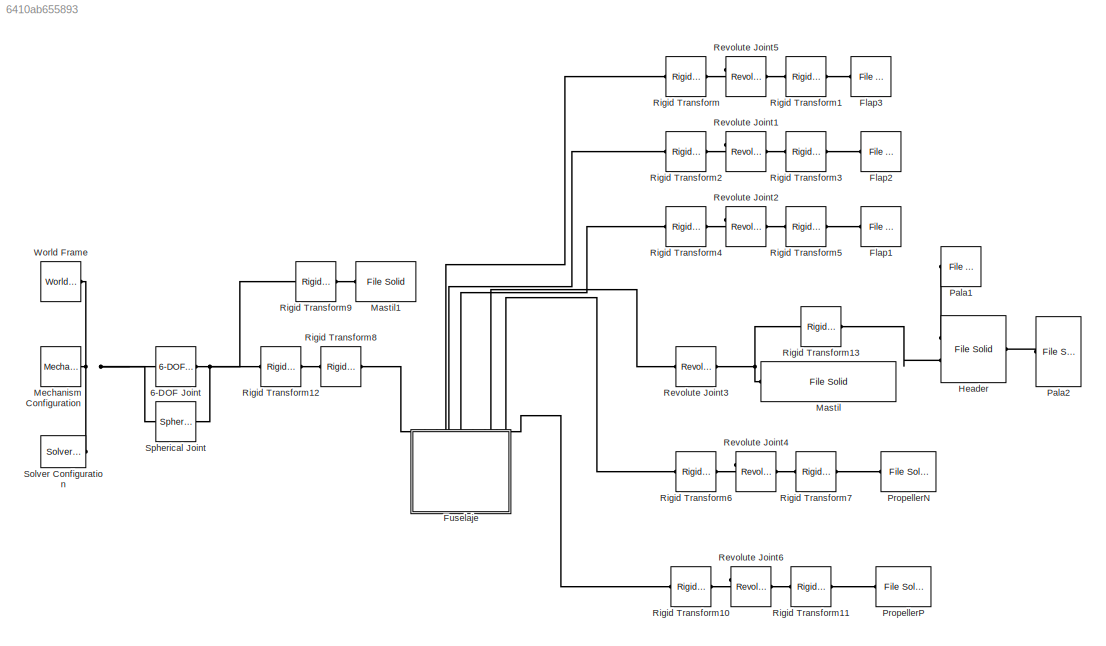
MODEL slx_6410ab655893
KIND model
CONFIG AbsTol = auto
CONFIG EnableMultiTasking = off
CONFIG FixedStep = auto
CONFIG MaxStep = auto
CONFIG MinStep = auto
CONFIG RelTol = 1e-3
CONFIG SampleTimeConstraint = Unconstrained
CONFIG SolverName = VariableStepAuto
CONFIG StartTime = 0.0
CONFIG StopTime = 10.0
BLOCK [Reference] 6-DOF Joint  REF=sm_lib/Joints/6-DOF Joint
  Commented = on
  Ports = [0, 0, 0, 0, 0, 1, 1]
  SourceBlock = sm_lib/Joints/6-DOF Joint
  SourceProductBaseCode = MS
  SourceType = 6-DOF Joint
BLOCK [Reference] Flap1  REF=sm_lib/Body Elements/File Solid
  Ports = [0, 0, 0, 0, 0, 1]
  SourceBlock = sm_lib/Body Elements/File Solid
  SourceProductBaseCode = MS
  SourceType = File Solid
BLOCK [Reference] Flap2  REF=sm_lib/Body Elements/File Solid
  Ports = [0, 0, 0, 0, 0, 1]
  SourceBlock = sm_lib/Body Elements/File Solid
  SourceProductBaseCode = MS
  SourceType = File Solid
BLOCK [Reference] Flap3  REF=sm_lib/Body Elements/File Solid
  Ports = [0, 0, 0, 0, 0, 1]
  SourceBlock = sm_lib/Body Elements/File Solid
  SourceProductBaseCode = MS
  SourceType = File Solid
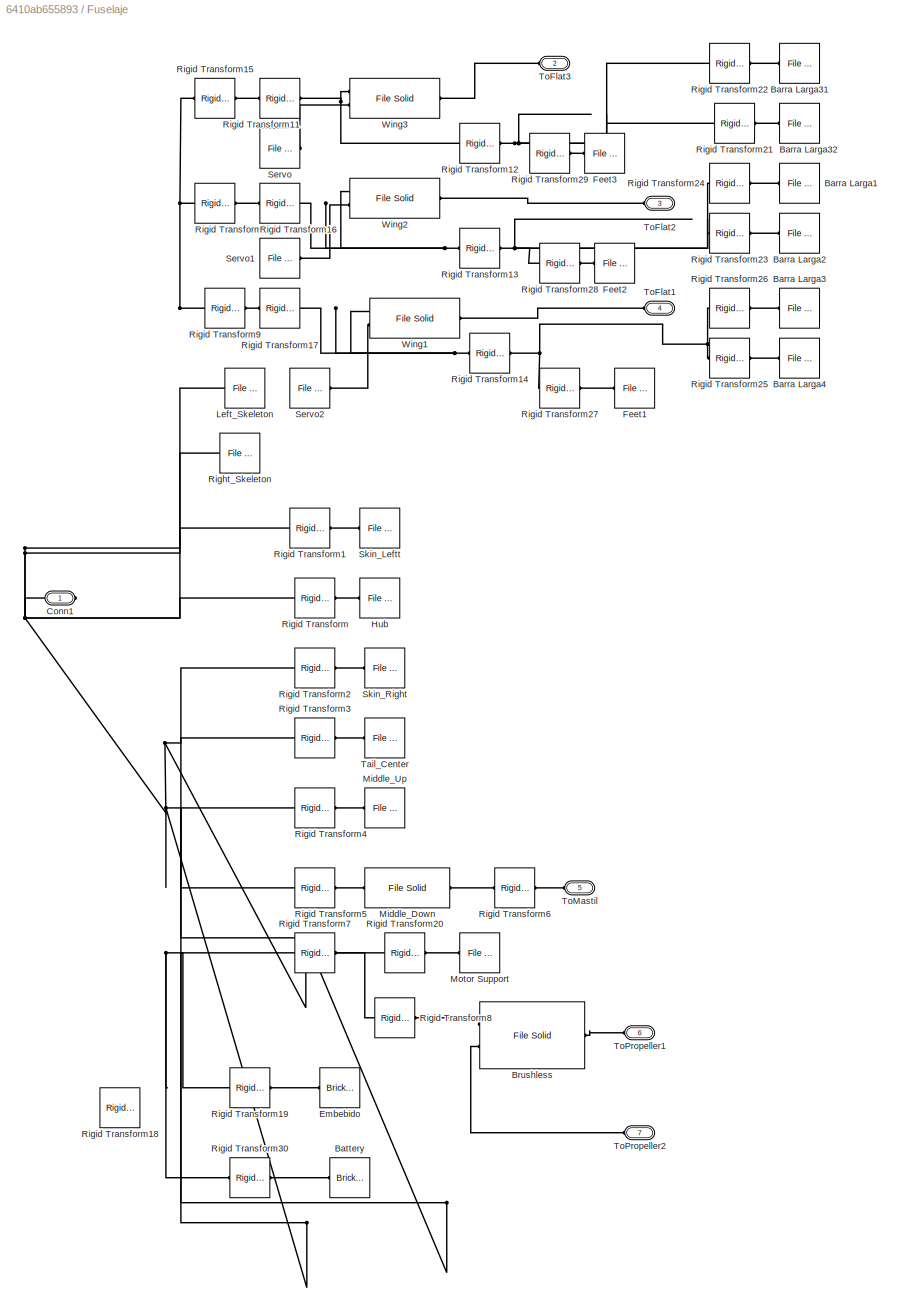
BLOCK [SubSystem] Fuselaje
  NameLocation = left
  Ports = [0, 0, 0, 0, 0, 7]
  RequestExecContextInheritance = off
BLOCK [Reference] Fuselaje/Barra Larga1  REF=sm_lib/Body Elements/File Solid
  Ports = [0, 0, 0, 0, 0, 1]
  SourceBlock = sm_lib/Body Elements/File Solid
  SourceProductBaseCode = MS
  SourceType = File Solid
BLOCK [Reference] Fuselaje/Barra Larga2  REF=sm_lib/Body Elements/File Solid
  Ports = [0, 0, 0, 0, 0, 1]
  SourceBlock = sm_lib/Body Elements/File Solid
  SourceProductBaseCode = MS
  SourceType = File Solid
BLOCK [Reference] Fuselaje/Barra Larga3  REF=sm_lib/Body Elements/File Solid
  Ports = [0, 0, 0, 0, 0, 1]
  SourceBlock = sm_lib/Body Elements/File Solid
  SourceProductBaseCode = MS
  SourceType = File Solid
BLOCK [Reference] Fuselaje/Barra Larga31  REF=sm_lib/Body Elements/File Solid
  Ports = [0, 0, 0, 0, 0, 1]
  SourceBlock = sm_lib/Body Elements/File Solid
  SourceProductBaseCode = MS
  SourceType = File Solid
BLOCK [Reference] Fuselaje/Barra Larga32  REF=sm_lib/Body Elements/File Solid
  Ports = [0, 0, 0, 0, 0, 1]
  SourceBlock = sm_lib/Body Elements/File Solid
  SourceProductBaseCode = MS
  SourceType = File Solid
BLOCK [Reference] Fuselaje/Barra Larga4  REF=sm_lib/Body Elements/File Solid
  Ports = [0, 0, 0, 0, 0, 1]
  SourceBlock = sm_lib/Body Elements/File Solid
  SourceProductBaseCode = MS
  SourceType = File Solid
BLOCK [Reference] Fuselaje/Battery  REF=sm_lib/Body Elements/Brick Solid
  NameLocation = top
  Ports = [0, 0, 0, 0, 0, 0, 1]
  SourceBlock = sm_lib/Body Elements/Brick Solid
  SourceProductBaseCode = MS
  SourceType = Brick Solid
BLOCK [Reference] Fuselaje/Brushless  REF=sm_lib/Body Elements/File Solid
  Ports = [0, 0, 0, 0, 0, 2, 1]
  SourceBlock = sm_lib/Body Elements/File Solid
  SourceProductBaseCode = MS
  SourceType = File Solid
BLOCK [PMIOPort] Fuselaje/Conn1
  Side = Left
BLOCK [Reference] Fuselaje/Embebido  REF=sm_lib/Body Elements/Brick Solid
  NameLocation = top
  Ports = [0, 0, 0, 0, 0, 0, 1]
  SourceBlock = sm_lib/Body Elements/Brick Solid
  SourceProductBaseCode = MS
  SourceType = Brick Solid
BLOCK [Reference] Fuselaje/Feet1  REF=sm_lib/Body Elements/File Solid
  Ports = [0, 0, 0, 0, 0, 1]
  SourceBlock = sm_lib/Body Elements/File Solid
  SourceProductBaseCode = MS
  SourceType = File Solid
BLOCK [Reference] Fuselaje/Feet2  REF=sm_lib/Body Elements/File Solid
  Ports = [0, 0, 0, 0, 0, 1]
  SourceBlock = sm_lib/Body Elements/File Solid
  SourceProductBaseCode = MS
  SourceType = File Solid
BLOCK [Reference] Fuselaje/Feet3  REF=sm_lib/Body Elements/File Solid
  Ports = [0, 0, 0, 0, 0, 1]
  SourceBlock = sm_lib/Body Elements/File Solid
  SourceProductBaseCode = MS
  SourceType = File Solid
BLOCK [Reference] Fuselaje/Hub  REF=sm_lib/Body Elements/File Solid
  Ports = [0, 0, 0, 0, 0, 1]
  SourceBlock = sm_lib/Body Elements/File Solid
  SourceProductBaseCode = MS
  SourceType = File Solid
BLOCK [Reference] Fuselaje/Left_Skeleton  REF=sm_lib/Body Elements/File Solid
  Ports = [0, 0, 0, 0, 0, 1]
  SourceBlock = sm_lib/Body Elements/File Solid
  SourceProductBaseCode = MS
  SourceType = File Solid
BLOCK [Reference] Fuselaje/Middle_Down  REF=sm_lib/Body Elements/File Solid
  Ports = [0, 0, 0, 0, 0, 1, 1]
  SourceBlock = sm_lib/Body Elements/File Solid
  SourceProductBaseCode = MS
  SourceType = File Solid
BLOCK [Reference] Fuselaje/Middle_Up  REF=sm_lib/Body Elements/File Solid
  Ports = [0, 0, 0, 0, 0, 1]
  SourceBlock = sm_lib/Body Elements/File Solid
  SourceProductBaseCode = MS
  SourceType = File Solid
BLOCK [Reference] Fuselaje/Motor Support  REF=sm_lib/Body Elements/File Solid
  Ports = [0, 0, 0, 0, 0, 1]
  SourceBlock = sm_lib/Body Elements/File Solid
  SourceProductBaseCode = MS
  SourceType = File Solid
BLOCK [Reference] Fuselaje/Right_Skeleton  REF=sm_lib/Body Elements/File Solid
  Ports = [0, 0, 0, 0, 0, 1]
  SourceBlock = sm_lib/Body Elements/File Solid
  SourceProductBaseCode = MS
  SourceType = File Solid
BLOCK [Reference] Fuselaje/Rigid Transform  REF=sm_lib/Frames and
Transforms/Rigid
Transform
  Ports = [0, 0, 0, 0, 0, 1, 1]
  SourceBlock = sm_lib/Frames and\nTransforms/Rigid\nTransform
  SourceProductBaseCode = MS
  SourceType = Rigid\nTransform
BLOCK [Reference] Fuselaje/Rigid Transform1  REF=sm_lib/Frames and
Transforms/Rigid
Transform
  Ports = [0, 0, 0, 0, 0, 1, 1]
  SourceBlock = sm_lib/Frames and\nTransforms/Rigid\nTransform
  SourceProductBaseCode = MS
  SourceType = Rigid\nTransform
BLOCK [Reference] Fuselaje/Rigid Transform10  REF=sm_lib/Frames and
Transforms/Rigid
Transform
  Ports = [0, 0, 0, 0, 0, 1, 1]
  SourceBlock = sm_lib/Frames and\nTransforms/Rigid\nTransform
  SourceProductBaseCode = MS
  SourceType = Rigid\nTransform
BLOCK [Reference] Fuselaje/Rigid Transform11  REF=sm_lib/Frames and
Transforms/Rigid
Transform
  Ports = [0, 0, 0, 0, 0, 1, 1]
  SourceBlock = sm_lib/Frames and\nTransforms/Rigid\nTransform
  SourceProductBaseCode = MS
  SourceType = Rigid\nTransform
BLOCK [Reference] Fuselaje/Rigid Transform12  REF=sm_lib/Frames and
Transforms/Rigid
Transform
  Ports = [0, 0, 0, 0, 0, 1, 1]
  SourceBlock = sm_lib/Frames and\nTransforms/Rigid\nTransform
  SourceProductBaseCode = MS
  SourceType = Rigid\nTransform
BLOCK [Reference] Fuselaje/Rigid Transform13  REF=sm_lib/Frames and
Transforms/Rigid
Transform
  Ports = [0, 0, 0, 0, 0, 1, 1]
  SourceBlock = sm_lib/Frames and\nTransforms/Rigid\nTransform
  SourceProductBaseCode = MS
  SourceType = Rigid\nTransform
BLOCK [Reference] Fuselaje/Rigid Transform14  REF=sm_lib/Frames and
Transforms/Rigid
Transform
  Ports = [0, 0, 0, 0, 0, 1, 1]
  SourceBlock = sm_lib/Frames and\nTransforms/Rigid\nTransform
  SourceProductBaseCode = MS
  SourceType = Rigid\nTransform
BLOCK [Reference] Fuselaje/Rigid Transform15  REF=sm_lib/Frames and
Transforms/Rigid
Transform
  Ports = [0, 0, 0, 0, 0, 1, 1]
  SourceBlock = sm_lib/Frames and\nTransforms/Rigid\nTransform
  SourceProductBaseCode = MS
  SourceType = Rigid\nTransform
BLOCK [Reference] Fuselaje/Rigid Transform16  REF=sm_lib/Frames and
Transforms/Rigid
Transform
  Ports = [0, 0, 0, 0, 0, 1, 1]
  SourceBlock = sm_lib/Frames and\nTransforms/Rigid\nTransform
  SourceProductBaseCode = MS
  SourceType = Rigid\nTransform
BLOCK [Reference] Fuselaje/Rigid Transform17  REF=sm_lib/Frames and
Transforms/Rigid
Transform
  Ports = [0, 0, 0, 0, 0, 1, 1]
  SourceBlock = sm_lib/Frames and\nTransforms/Rigid\nTransform
  SourceProductBaseCode = MS
  SourceType = Rigid\nTransform
BLOCK [Reference] Fuselaje/Rigid Transform18  REF=sm_lib/Frames and
Transforms/Rigid
Transform
  Commented = on
  Ports = [0, 0, 0, 0, 0, 1, 1]
  SourceBlock = sm_lib/Frames and\nTransforms/Rigid\nTransform
  SourceProductBaseCode = MS
  SourceType = Rigid\nTransform
BLOCK [Reference] Fuselaje/Rigid Transform19  REF=sm_lib/Frames and
Transforms/Rigid
Transform
  Ports = [0, 0, 0, 0, 0, 1, 1]
  SourceBlock = sm_lib/Frames and\nTransforms/Rigid\nTransform
  SourceProductBaseCode = MS
  SourceType = Rigid\nTransform
BLOCK [Reference] Fuselaje/Rigid Transform2  REF=sm_lib/Frames and
Transforms/Rigid
Transform
  Ports = [0, 0, 0, 0, 0, 1, 1]
  SourceBlock = sm_lib/Frames and\nTransforms/Rigid\nTransform
  SourceProductBaseCode = MS
  SourceType = Rigid\nTransform
BLOCK [Reference] Fuselaje/Rigid Transform20  REF=sm_lib/Frames and
Transforms/Rigid
Transform
  Ports = [0, 0, 0, 0, 0, 1, 1]
  SourceBlock = sm_lib/Frames and\nTransforms/Rigid\nTransform
  SourceProductBaseCode = MS
  SourceType = Rigid\nTransform
BLOCK [Reference] Fuselaje/Rigid Transform21  REF=sm_lib/Frames and
Transforms/Rigid
Transform
  Ports = [0, 0, 0, 0, 0, 1, 1]
  SourceBlock = sm_lib/Frames and\nTransforms/Rigid\nTransform
  SourceProductBaseCode = MS
  SourceType = Rigid\nTransform
BLOCK [Reference] Fuselaje/Rigid Transform22  REF=sm_lib/Frames and
Transforms/Rigid
Transform
  Ports = [0, 0, 0, 0, 0, 1, 1]
  SourceBlock = sm_lib/Frames and\nTransforms/Rigid\nTransform
  SourceProductBaseCode = MS
  SourceType = Rigid\nTransform
BLOCK [Reference] Fuselaje/Rigid Transform23  REF=sm_lib/Frames and
Transforms/Rigid
Transform
  Ports = [0, 0, 0, 0, 0, 1, 1]
  SourceBlock = sm_lib/Frames and\nTransforms/Rigid\nTransform
  SourceProductBaseCode = MS
  SourceType = Rigid\nTransform
BLOCK [Reference] Fuselaje/Rigid Transform24  REF=sm_lib/Frames and
Transforms/Rigid
Transform
  Ports = [0, 0, 0, 0, 0, 1, 1]
  SourceBlock = sm_lib/Frames and\nTransforms/Rigid\nTransform
  SourceProductBaseCode = MS
  SourceType = Rigid\nTransform
BLOCK [Reference] Fuselaje/Rigid Transform25  REF=sm_lib/Frames and
Transforms/Rigid
Transform
  Ports = [0, 0, 0, 0, 0, 1, 1]
  SourceBlock = sm_lib/Frames and\nTransforms/Rigid\nTransform
  SourceProductBaseCode = MS
  SourceType = Rigid\nTransform
BLOCK [Reference] Fuselaje/Rigid Transform26  REF=sm_lib/Frames and
Transforms/Rigid
Transform
  Ports = [0, 0, 0, 0, 0, 1, 1]
  SourceBlock = sm_lib/Frames and\nTransforms/Rigid\nTransform
  SourceProductBaseCode = MS
  SourceType = Rigid\nTransform
BLOCK [Reference] Fuselaje/Rigid Transform27  REF=sm_lib/Frames and
Transforms/Rigid
Transform
  Ports = [0, 0, 0, 0, 0, 1, 1]
  SourceBlock = sm_lib/Frames and\nTransforms/Rigid\nTransform
  SourceProductBaseCode = MS
  SourceType = Rigid\nTransform
BLOCK [Reference] Fuselaje/Rigid Transform28  REF=sm_lib/Frames and
Transforms/Rigid
Transform
  Ports = [0, 0, 0, 0, 0, 1, 1]
  SourceBlock = sm_lib/Frames and\nTransforms/Rigid\nTransform
  SourceProductBaseCode = MS
  SourceType = Rigid\nTransform
BLOCK [Reference] Fuselaje/Rigid Transform29  REF=sm_lib/Frames and
Transforms/Rigid
Transform
  Ports = [0, 0, 0, 0, 0, 1, 1]
  SourceBlock = sm_lib/Frames and\nTransforms/Rigid\nTransform
  SourceProductBaseCode = MS
  SourceType = Rigid\nTransform
BLOCK [Reference] Fuselaje/Rigid Transform3  REF=sm_lib/Frames and
Transforms/Rigid
Transform
  Ports = [0, 0, 0, 0, 0, 1, 1]
  SourceBlock = sm_lib/Frames and\nTransforms/Rigid\nTransform
  SourceProductBaseCode = MS
  SourceType = Rigid\nTransform
BLOCK [Reference] Fuselaje/Rigid Transform30  REF=sm_lib/Frames and
Transforms/Rigid
Transform
  Ports = [0, 0, 0, 0, 0, 1, 1]
  SourceBlock = sm_lib/Frames and\nTransforms/Rigid\nTransform
  SourceProductBaseCode = MS
  SourceType = Rigid\nTransform
BLOCK [Reference] Fuselaje/Rigid Transform4  REF=sm_lib/Frames and
Transforms/Rigid
Transform
  Ports = [0, 0, 0, 0, 0, 1, 1]
  SourceBlock = sm_lib/Frames and\nTransforms/Rigid\nTransform
  SourceProductBaseCode = MS
  SourceType = Rigid\nTransform
BLOCK [Reference] Fuselaje/Rigid Transform5  REF=sm_lib/Frames and
Transforms/Rigid
Transform
  Ports = [0, 0, 0, 0, 0, 1, 1]
  SourceBlock = sm_lib/Frames and\nTransforms/Rigid\nTransform
  SourceProductBaseCode = MS
  SourceType = Rigid\nTransform
BLOCK [Reference] Fuselaje/Rigid Transform6  REF=sm_lib/Frames and
Transforms/Rigid
Transform
  Ports = [0, 0, 0, 0, 0, 1, 1]
  SourceBlock = sm_lib/Frames and\nTransforms/Rigid\nTransform
  SourceProductBaseCode = MS
  SourceType = Rigid\nTransform
BLOCK [Reference] Fuselaje/Rigid Transform7  REF=sm_lib/Frames and
Transforms/Rigid
Transform
  Ports = [0, 0, 0, 0, 0, 1, 1]
  SourceBlock = sm_lib/Frames and\nTransforms/Rigid\nTransform
  SourceProductBaseCode = MS
  SourceType = Rigid\nTransform
BLOCK [Reference] Fuselaje/Rigid Transform8  REF=sm_lib/Frames and
Transforms/Rigid
Transform
  Ports = [0, 0, 0, 0, 0, 1, 1]
  SourceBlock = sm_lib/Frames and\nTransforms/Rigid\nTransform
  SourceProductBaseCode = MS
  SourceType = Rigid\nTransform
BLOCK [Reference] Fuselaje/Rigid Transform9  REF=sm_lib/Frames and
Transforms/Rigid
Transform
  Ports = [0, 0, 0, 0, 0, 1, 1]
  SourceBlock = sm_lib/Frames and\nTransforms/Rigid\nTransform
  SourceProductBaseCode = MS
  SourceType = Rigid\nTransform
BLOCK [Reference] Fuselaje/Servo  REF=sm_lib/Body Elements/File Solid
  NameLocation = top
  Ports = [0, 0, 0, 0, 0, 1]
  SourceBlock = sm_lib/Body Elements/File Solid
  SourceProductBaseCode = MS
  SourceType = File Solid
BLOCK [Reference] Fuselaje/Servo1  REF=sm_lib/Body Elements/File Solid
  NameLocation = top
  Ports = [0, 0, 0, 0, 0, 1]
  SourceBlock = sm_lib/Body Elements/File Solid
  SourceProductBaseCode = MS
  SourceType = File Solid
BLOCK [Reference] Fuselaje/Servo2  REF=sm_lib/Body Elements/File Solid
  NameLocation = top
  Ports = [0, 0, 0, 0, 0, 1]
  SourceBlock = sm_lib/Body Elements/File Solid
  SourceProductBaseCode = MS
  SourceType = File Solid
BLOCK [Reference] Fuselaje/Skin_Leftt  REF=sm_lib/Body Elements/File Solid
  Ports = [0, 0, 0, 0, 0, 1]
  SourceBlock = sm_lib/Body Elements/File Solid
  SourceProductBaseCode = MS
  SourceType = File Solid
BLOCK [Reference] Fuselaje/Skin_Right  REF=sm_lib/Body Elements/File Solid
  Ports = [0, 0, 0, 0, 0, 1]
  SourceBlock = sm_lib/Body Elements/File Solid
  SourceProductBaseCode = MS
  SourceType = File Solid
BLOCK [Reference] Fuselaje/Tail_Center  REF=sm_lib/Body Elements/File Solid
  Ports = [0, 0, 0, 0, 0, 1]
  SourceBlock = sm_lib/Body Elements/File Solid
  SourceProductBaseCode = MS
  SourceType = File Solid
BLOCK [PMIOPort] Fuselaje/ToFlat1
  NameLocation = top
  Port = 4
  Side = Left
BLOCK [PMIOPort] Fuselaje/ToFlat2
  NameLocation = top
  Port = 3
  Side = Left
BLOCK [PMIOPort] Fuselaje/ToFlat3
  NameLocation = top
  Port = 2
  Side = Left
BLOCK [PMIOPort] Fuselaje/ToMastil
  NameLocation = top
  Port = 5
  Side = Left
BLOCK [PMIOPort] Fuselaje/ToPropeller1
  NameLocation = top
  Port = 6
  Side = Left
BLOCK [PMIOPort] Fuselaje/ToPropeller2
  NameLocation = top
  Port = 7
  Side = Left
BLOCK [Reference] Fuselaje/Wing1  REF=sm_lib/Body Elements/File Solid
  Ports = [0, 0, 0, 0, 0, 2, 1]
  SourceBlock = sm_lib/Body Elements/File Solid
  SourceProductBaseCode = MS
  SourceType = File Solid
BLOCK [Reference] Fuselaje/Wing2  REF=sm_lib/Body Elements/File Solid
  Ports = [0, 0, 0, 0, 0, 2, 1]
  SourceBlock = sm_lib/Body Elements/File Solid
  SourceProductBaseCode = MS
  SourceType = File Solid
BLOCK [Reference] Fuselaje/Wing3  REF=sm_lib/Body Elements/File Solid
  Ports = [0, 0, 0, 0, 0, 2, 1]
  SourceBlock = sm_lib/Body Elements/File Solid
  SourceProductBaseCode = MS
  SourceType = File Solid
BLOCK [Reference] Header  REF=sm_lib/Body Elements/File Solid
  Ports = [0, 0, 0, 0, 0, 2, 1]
  SourceBlock = sm_lib/Body Elements/File Solid
  SourceProductBaseCode = MS
  SourceType = File Solid
BLOCK [Reference] Mastil  REF=sm_lib/Body Elements/File Solid
  Ports = [0, 0, 0, 0, 0, 1, 1]
  SourceBlock = sm_lib/Body Elements/File Solid
  SourceProductBaseCode = MS
  SourceType = File Solid
BLOCK [Reference] Mastil1  REF=sm_lib/Body Elements/File Solid
  Ports = [0, 0, 0, 0, 0, 1, 1]
  SourceBlock = sm_lib/Body Elements/File Solid
  SourceProductBaseCode = MS
  SourceType = File Solid
BLOCK [Reference] Mechanism Configuration  REF=sm_lib/Utilities/Mechanism
Configuration
  Ports = [0, 0, 0, 0, 0, 0, 1]
  SourceBlock = sm_lib/Utilities/Mechanism\nConfiguration
  SourceProductBaseCode = MS
  SourceType = Mechanism\nConfiguration
BLOCK [Reference] Pala1  REF=sm_lib/Body Elements/File Solid
  Ports = [0, 0, 0, 0, 0, 1]
  SourceBlock = sm_lib/Body Elements/File Solid
  SourceProductBaseCode = MS
  SourceType = File Solid
BLOCK [Reference] Pala2  REF=sm_lib/Body Elements/File Solid
  Ports = [0, 0, 0, 0, 0, 1]
  SourceBlock = sm_lib/Body Elements/File Solid
  SourceProductBaseCode = MS
  SourceType = File Solid
BLOCK [Reference] PropellerN  REF=sm_lib/Body Elements/File Solid
  Ports = [0, 0, 0, 0, 0, 1, 1]
  SourceBlock = sm_lib/Body Elements/File Solid
  SourceProductBaseCode = MS
  SourceType = File Solid
BLOCK [Reference] PropellerP  REF=sm_lib/Body Elements/File Solid
  Ports = [0, 0, 0, 0, 0, 1, 1]
  SourceBlock = sm_lib/Body Elements/File Solid
  SourceProductBaseCode = MS
  SourceType = File Solid
BLOCK [Reference] Revolute Joint1  REF=sm_lib/Joints/Revolute Joint
  Ports = [0, 0, 0, 0, 0, 2, 1]
  SourceBlock = sm_lib/Joints/Revolute Joint
  SourceProductBaseCode = MS
  SourceType = Revolute Joint
BLOCK [Reference] Revolute Joint2  REF=sm_lib/Joints/Revolute Joint
  Ports = [0, 0, 0, 0, 0, 2, 1]
  SourceBlock = sm_lib/Joints/Revolute Joint
  SourceProductBaseCode = MS
  SourceType = Revolute Joint
BLOCK [Reference] Revolute Joint3  REF=sm_lib/Joints/Revolute Joint
  Ports = [0, 0, 0, 0, 0, 1, 1]
  SourceBlock = sm_lib/Joints/Revolute Joint
  SourceProductBaseCode = MS
  SourceType = Revolute Joint
BLOCK [Reference] Revolute Joint4  REF=sm_lib/Joints/Revolute Joint
  Ports = [0, 0, 0, 0, 0, 2, 1]
  SourceBlock = sm_lib/Joints/Revolute Joint
  SourceProductBaseCode = MS
  SourceType = Revolute Joint
BLOCK [Reference] Revolute Joint5  REF=sm_lib/Joints/Revolute Joint
  Ports = [0, 0, 0, 0, 0, 2, 1]
  SourceBlock = sm_lib/Joints/Revolute Joint
  SourceProductBaseCode = MS
  SourceType = Revolute Joint
BLOCK [Reference] Revolute Joint6  REF=sm_lib/Joints/Revolute Joint
  Ports = [0, 0, 0, 0, 0, 2, 1]
  SourceBlock = sm_lib/Joints/Revolute Joint
  SourceProductBaseCode = MS
  SourceType = Revolute Joint
BLOCK [Reference] Rigid Transform  REF=sm_lib/Frames and
Transforms/Rigid
Transform
  Ports = [0, 0, 0, 0, 0, 1, 1]
  SourceBlock = sm_lib/Frames and\nTransforms/Rigid\nTransform
  SourceProductBaseCode = MS
  SourceType = Rigid\nTransform
BLOCK [Reference] Rigid Transform1  REF=sm_lib/Frames and
Transforms/Rigid
Transform
  Ports = [0, 0, 0, 0, 0, 1, 1]
  SourceBlock = sm_lib/Frames and\nTransforms/Rigid\nTransform
  SourceProductBaseCode = MS
  SourceType = Rigid\nTransform
BLOCK [Reference] Rigid Transform10  REF=sm_lib/Frames and
Transforms/Rigid
Transform
  Ports = [0, 0, 0, 0, 0, 1, 1]
  SourceBlock = sm_lib/Frames and\nTransforms/Rigid\nTransform
  SourceProductBaseCode = MS
  SourceType = Rigid\nTransform
BLOCK [Reference] Rigid Transform11  REF=sm_lib/Frames and
Transforms/Rigid
Transform
  Ports = [0, 0, 0, 0, 0, 1, 1]
  SourceBlock = sm_lib/Frames and\nTransforms/Rigid\nTransform
  SourceProductBaseCode = MS
  SourceType = Rigid\nTransform
BLOCK [Reference] Rigid Transform12  REF=sm_lib/Frames and
Transforms/Rigid
Transform
  Ports = [0, 0, 0, 0, 0, 1, 1]
  SourceBlock = sm_lib/Frames and\nTransforms/Rigid\nTransform
  SourceProductBaseCode = MS
  SourceType = Rigid\nTransform
BLOCK [Reference] Rigid Transform13  REF=sm_lib/Frames and
Transforms/Rigid
Transform
  Ports = [0, 0, 0, 0, 0, 1, 1]
  SourceBlock = sm_lib/Frames and\nTransforms/Rigid\nTransform
  SourceProductBaseCode = MS
  SourceType = Rigid\nTransform
BLOCK [Reference] Rigid Transform2  REF=sm_lib/Frames and
Transforms/Rigid
Transform
  Ports = [0, 0, 0, 0, 0, 1, 1]
  SourceBlock = sm_lib/Frames and\nTransforms/Rigid\nTransform
  SourceProductBaseCode = MS
  SourceType = Rigid\nTransform
BLOCK [Reference] Rigid Transform3  REF=sm_lib/Frames and
Transforms/Rigid
Transform
  Ports = [0, 0, 0, 0, 0, 1, 1]
  SourceBlock = sm_lib/Frames and\nTransforms/Rigid\nTransform
  SourceProductBaseCode = MS
  SourceType = Rigid\nTransform
BLOCK [Reference] Rigid Transform4  REF=sm_lib/Frames and
Transforms/Rigid
Transform
  Ports = [0, 0, 0, 0, 0, 1, 1]
  SourceBlock = sm_lib/Frames and\nTransforms/Rigid\nTransform
  SourceProductBaseCode = MS
  SourceType = Rigid\nTransform
BLOCK [Reference] Rigid Transform5  REF=sm_lib/Frames and
Transforms/Rigid
Transform
  Ports = [0, 0, 0, 0, 0, 1, 1]
  SourceBlock = sm_lib/Frames and\nTransforms/Rigid\nTransform
  SourceProductBaseCode = MS
  SourceType = Rigid\nTransform
BLOCK [Reference] Rigid Transform6  REF=sm_lib/Frames and
Transforms/Rigid
Transform
  Ports = [0, 0, 0, 0, 0, 1, 1]
  SourceBlock = sm_lib/Frames and\nTransforms/Rigid\nTransform
  SourceProductBaseCode = MS
  SourceType = Rigid\nTransform
BLOCK [Reference] Rigid Transform7  REF=sm_lib/Frames and
Transforms/Rigid
Transform
  Ports = [0, 0, 0, 0, 0, 1, 1]
  SourceBlock = sm_lib/Frames and\nTransforms/Rigid\nTransform
  SourceProductBaseCode = MS
  SourceType = Rigid\nTransform
BLOCK [Reference] Rigid Transform8  REF=sm_lib/Frames and
Transforms/Rigid
Transform
  Ports = [0, 0, 0, 0, 0, 1, 1]
  SourceBlock = sm_lib/Frames and\nTransforms/Rigid\nTransform
  SourceProductBaseCode = MS
  SourceType = Rigid\nTransform
BLOCK [Reference] Rigid Transform9  REF=sm_lib/Frames and
Transforms/Rigid
Transform
  Ports = [0, 0, 0, 0, 0, 1, 1]
  SourceBlock = sm_lib/Frames and\nTransforms/Rigid\nTransform
  SourceProductBaseCode = MS
  SourceType = Rigid\nTransform
BLOCK [Reference] Solver Configuration  REF=nesl_utility/Solver
Configuration
  Ports = [0, 0, 0, 0, 0, 0, 1]
  SourceBlock = nesl_utility/Solver\nConfiguration
  SourceProductBaseCode = PW,SS
  SourceType = Solver\nConfiguration
BLOCK [Reference] Spherical Joint  REF=sm_lib/Joints/Spherical
Joint
  Ports = [0, 0, 0, 0, 0, 1, 1]
  SourceBlock = sm_lib/Joints/Spherical\nJoint
  SourceProductBaseCode = MS
  SourceType = Spherical\nJoint
BLOCK [Reference] World Frame  REF=sm_lib/Frames and
Transforms/World Frame
  Ports = [0, 0, 0, 0, 0, 0, 1]
  SourceBlock = sm_lib/Frames and\nTransforms/World Frame
  SourceProductBaseCode = MS
  SourceType = World Frame
PNET net1: 6-DOF Joint:LConn1 -- Mechanism Configuration:RConn1 -- Solver Configuration:RConn1 -- Spherical Joint:LConn1 -- World Frame:RConn1
PNET net2: 6-DOF Joint:RConn1 -- Rigid Transform12:LConn1 -- Rigid Transform9:LConn1 -- Spherical Joint:RConn1
PLINE Flap1:LConn1 -- Rigid Transform5:RConn1
PLINE Flap2:LConn1 -- Rigid Transform3:RConn1
PLINE Flap3:LConn1 -- Rigid Transform1:RConn1
PLINE Fuselaje/Barra Larga1:LConn1 -- Fuselaje/Rigid Transform24:RConn1
PLINE Fuselaje/Barra Larga2:LConn1 -- Fuselaje/Rigid Transform23:RConn1
PLINE Fuselaje/Barra Larga31:LConn1 -- Fuselaje/Rigid Transform22:RConn1
PLINE Fuselaje/Barra Larga32:LConn1 -- Fuselaje/Rigid Transform21:RConn1
PLINE Fuselaje/Barra Larga3:LConn1 -- Fuselaje/Rigid Transform26:RConn1
PLINE Fuselaje/Barra Larga4:LConn1 -- Fuselaje/Rigid Transform25:RConn1
PLINE Fuselaje/Battery:RConn1 -- Fuselaje/Rigid Transform30:RConn1
PLINE Fuselaje/Brushless:LConn1 -- Fuselaje/Rigid Transform8:RConn1
PLINE Fuselaje/Brushless:LConn2 -- Fuselaje/ToPropeller2:RConn1
PLINE Fuselaje/Brushless:RConn1 -- Fuselaje/ToPropeller1:RConn1
PNET net3: Fuselaje/Conn1:RConn1 -- Fuselaje/Left_Skeleton:LConn1 -- Fuselaje/Right_Skeleton:LConn1 -- Fuselaje/Rigid Transform10:LConn1 -- Fuselaje/Rigid Transform15:LConn1 -- Fuselaje/Rigid Transform19:LConn1 -- Fuselaje/Rigid Transform1:LConn1 -- Fuselaje/Rigid Transform2:LConn1 -- Fuselaje/Rigid Transform30:LConn1 -- Fuselaje/Rigid Transform3:LConn1 -- Fuselaje/Rigid Transform4:LConn1 -- Fuselaje/Rigid Transform5:LConn1 -- Fuselaje/Rigid Transform7:LConn1 -- Fuselaje/Rigid Transform9:LConn1 -- Fuselaje/Rigid Transform:LConn1
PLINE Fuselaje/Embebido:RConn1 -- Fuselaje/Rigid Transform19:RConn1
PLINE Fuselaje/Feet1:LConn1 -- Fuselaje/Rigid Transform27:RConn1
PLINE Fuselaje/Feet2:LConn1 -- Fuselaje/Rigid Transform28:RConn1
PLINE Fuselaje/Feet3:LConn1 -- Fuselaje/Rigid Transform29:RConn1
PLINE Fuselaje/Hub:LConn1 -- Fuselaje/Rigid Transform:RConn1
PLINE Fuselaje/Middle_Down:LConn1 -- Fuselaje/Rigid Transform5:RConn1
PLINE Fuselaje/Middle_Down:RConn1 -- Fuselaje/Rigid Transform6:LConn1
PLINE Fuselaje/Middle_Up:LConn1 -- Fuselaje/Rigid Transform4:RConn1
PLINE Fuselaje/Motor Support:LConn1 -- Fuselaje/Rigid Transform20:RConn1
PLINE Fuselaje/Rigid Transform10:RConn1 -- Fuselaje/Rigid Transform16:LConn1
PLINE Fuselaje/Rigid Transform11:LConn1 -- Fuselaje/Rigid Transform15:RConn1
PNET net4: Fuselaje/Rigid Transform11:RConn1 -- Fuselaje/Rigid Transform12:LConn1 -- Fuselaje/Wing3:LConn1
PNET net5: Fuselaje/Rigid Transform12:RConn1 -- Fuselaje/Rigid Transform21:LConn1 -- Fuselaje/Rigid Transform22:LConn1 -- Fuselaje/Rigid Transform29:LConn1
PNET net6: Fuselaje/Rigid Transform13:LConn1 -- Fuselaje/Rigid Transform16:RConn1 -- Fuselaje/Wing2:LConn1
PNET net7: Fuselaje/Rigid Transform13:RConn1 -- Fuselaje/Rigid Transform23:LConn1 -- Fuselaje/Rigid Transform24:LConn1 -- Fuselaje/Rigid Transform28:LConn1
PNET net8: Fuselaje/Rigid Transform14:LConn1 -- Fuselaje/Rigid Transform17:RConn1 -- Fuselaje/Wing1:LConn1
PNET net9: Fuselaje/Rigid Transform14:RConn1 -- Fuselaje/Rigid Transform25:LConn1 -- Fuselaje/Rigid Transform26:LConn1 -- Fuselaje/Rigid Transform27:LConn1
PLINE Fuselaje/Rigid Transform17:LConn1 -- Fuselaje/Rigid Transform9:RConn1
PLINE Fuselaje/Rigid Transform1:RConn1 -- Fuselaje/Skin_Leftt:LConn1
PNET net10: Fuselaje/Rigid Transform20:LConn1 -- Fuselaje/Rigid Transform7:RConn1 -- Fuselaje/Rigid Transform8:LConn1
PLINE Fuselaje/Rigid Transform2:RConn1 -- Fuselaje/Skin_Right:LConn1
PLINE Fuselaje/Rigid Transform3:RConn1 -- Fuselaje/Tail_Center:LConn1
PLINE Fuselaje/Rigid Transform6:RConn1 -- Fuselaje/ToMastil:RConn1
PLINE Fuselaje/Servo1:LConn1 -- Fuselaje/Wing2:LConn2
PLINE Fuselaje/Servo2:LConn1 -- Fuselaje/Wing1:LConn2
PLINE Fuselaje/Servo:LConn1 -- Fuselaje/Wing3:LConn2
PLINE Fuselaje/ToFlat1:RConn1 -- Fuselaje/Wing1:RConn1
PLINE Fuselaje/ToFlat2:RConn1 -- Fuselaje/Wing2:RConn1
PLINE Fuselaje/ToFlat3:RConn1 -- Fuselaje/Wing3:RConn1
PLINE Fuselaje:LConn1 -- Rigid Transform8:RConn1
PLINE Fuselaje:LConn2 -- Rigid Transform:LConn1
PLINE Fuselaje:LConn3 -- Rigid Transform2:LConn1
PLINE Fuselaje:LConn4 -- Rigid Transform4:LConn1
PLINE Fuselaje:LConn5 -- Revolute Joint3:LConn1
PLINE Fuselaje:LConn6 -- Rigid Transform6:LConn1
PLINE Fuselaje:LConn7 -- Rigid Transform10:LConn1
PLINE Header:LConn1 -- Pala1:LConn1
PLINE Header:LConn2 -- Rigid Transform13:RConn1
PLINE Header:RConn1 -- Pala2:LConn1
PLINE Mastil1:LConn1 -- Rigid Transform9:RConn1
PNET net11: Mastil:LConn1 -- Revolute Joint3:RConn1 -- Rigid Transform13:LConn1
PLINE PropellerN:LConn1 -- Rigid Transform7:RConn1
PLINE PropellerP:LConn1 -- Rigid Transform11:RConn1
PLINE Revolute Joint1:LConn1 -- Rigid Transform2:RConn1
PLINE Revolute Joint1:RConn1 -- Rigid Transform3:LConn1
PLINE Revolute Joint2:LConn1 -- Rigid Transform4:RConn1
PLINE Revolute Joint2:RConn1 -- Rigid Transform5:LConn1
PLINE Revolute Joint4:LConn1 -- Rigid Transform6:RConn1
PLINE Revolute Joint4:RConn1 -- Rigid Transform7:LConn1
PLINE Revolute Joint5:LConn1 -- Rigid Transform:RConn1
PLINE Revolute Joint5:RConn1 -- Rigid Transform1:LConn1
PLINE Revolute Joint6:LConn1 -- Rigid Transform10:RConn1
PLINE Revolute Joint6:RConn1 -- Rigid Transform11:LConn1
PLINE Rigid Transform12:RConn1 -- Rigid Transform8:LConn1
note: PNET lines group multi-terminal physical nets as a canonical sorted terminal list (undirected conserving connections); 2-terminal nets keep the pairwise PLINE form
